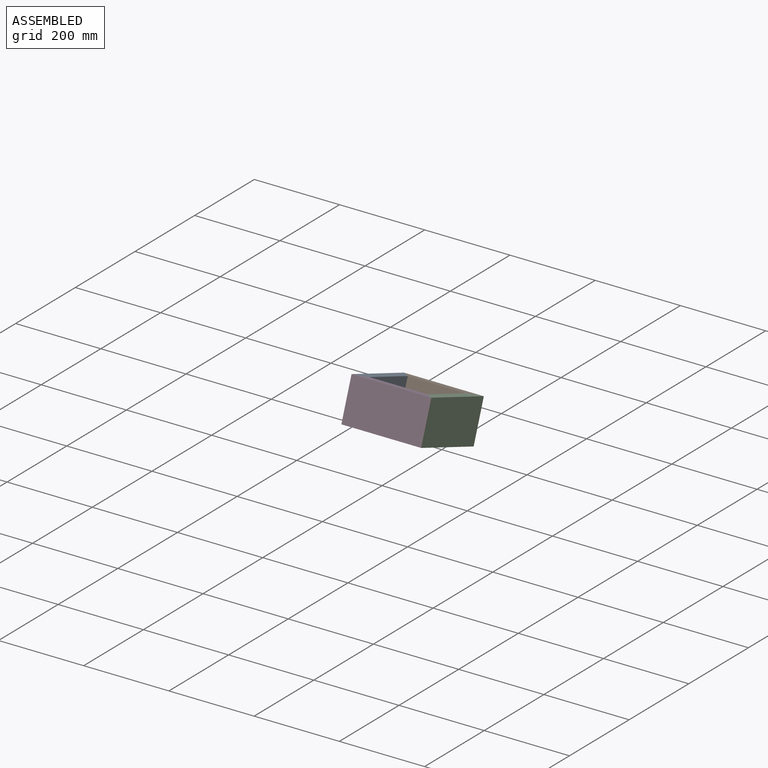
[diagram: assembled view]
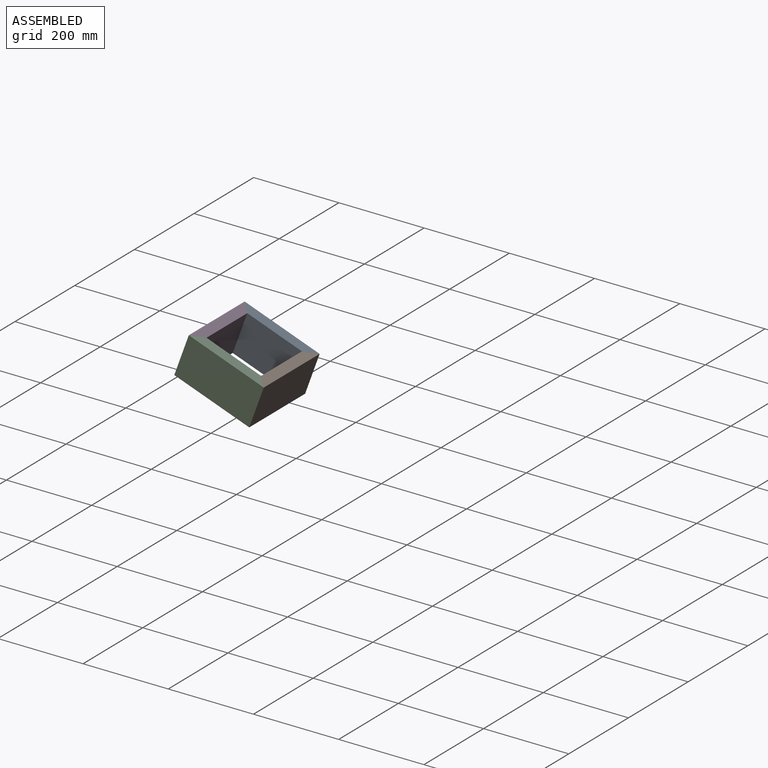
[diagram: assembled view, second angle]
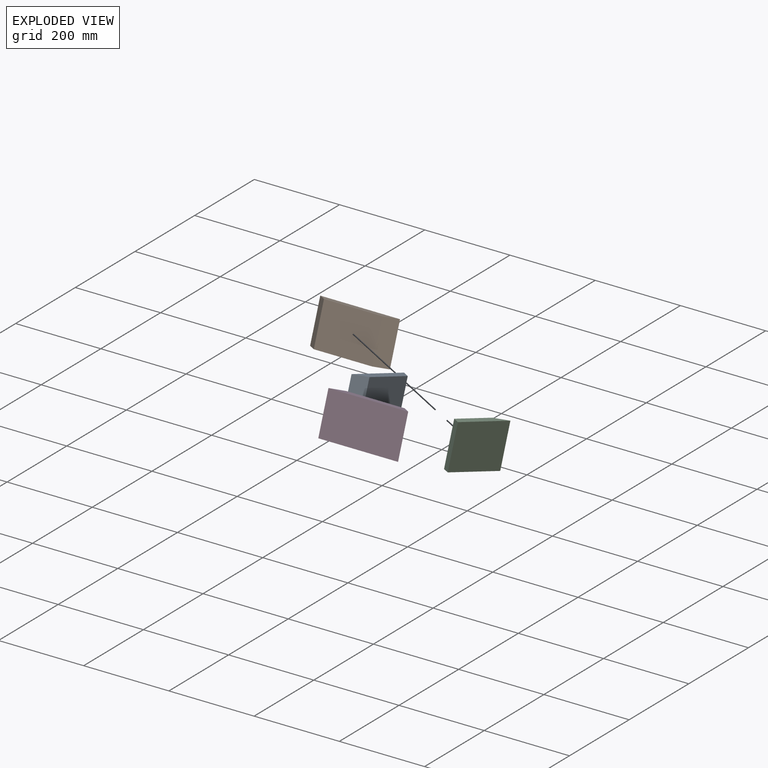
[diagram: exploded view]
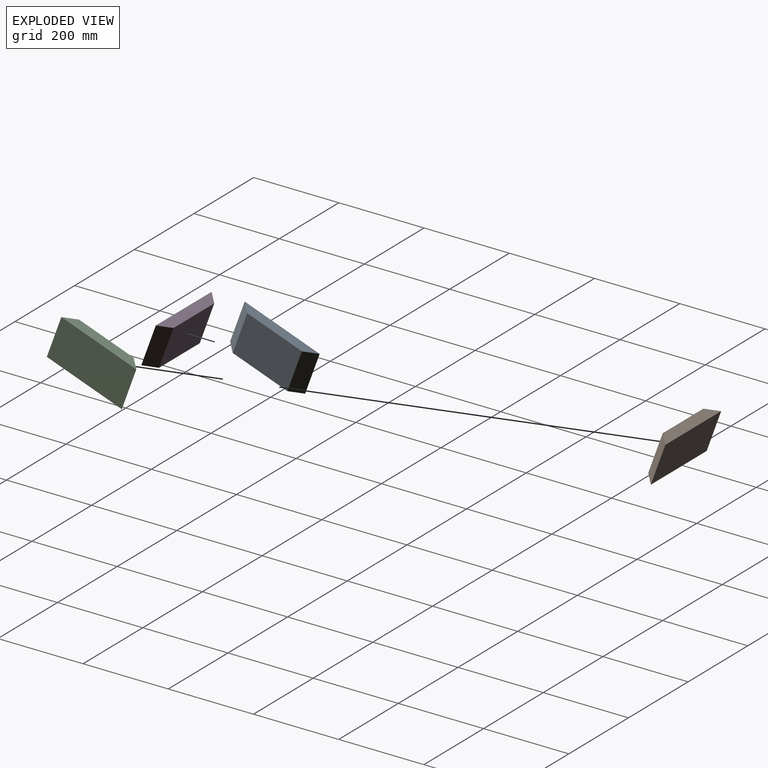
[diagram: exploded view, second angle]
ASSEMBLY  parts=4 mates=3
PART A: 6 faces, bbox 187.3x99.6x25.4 mm
  f0: plane 187.26x25.4mm, normal (0,1,0), area 4111.3mm2, adj f2,f3,f4,f5
  f1: plane 187.26x25.4mm, normal (0,-1,0), area 4111.3mm2, adj f2,f3,f4,f5
  f2: plane 187.26x99.56mm, normal (0,0,1), area 18642.8mm2, adj f0,f1,f4,f5
  f3: plane 136.46x99.56mm, normal (0,0,-1), area 13585.4mm2, adj f0,f1,f4,f5
  f4: plane 99.56x25.4mm, normal (0.71,0,-0.71), area 3576.1mm2, adj f0,f1,f2,f3
  f5: plane 99.56x25.4mm, normal (-0.71,0,-0.71), area 3576.1mm2, adj f0,f1,f2,f3
PART B: same geometry as A
PART C: same geometry as A
PART D: same geometry as A
PLACE A rot(axis=(-0.63,-0.44,0.63),132.1deg) t=(-71.86,22.05,-89.88)mm
PLACE B rot(axis=(0,-0.82,-0.57),180deg) t=(-3.63,86.16,-113.21)mm
PLACE C rot(axis=(-0.63,0.44,-0.63),132.1deg) t=(64.6,22.05,-89.88)mm
PLACE D rot(axis=(1,0,0),70deg) t=(-3.63,-42.07,-66.54)mm
MATE planar C.f4 <-> D.f4  axis (-0.71,-0.66,0.24) through (77.3,-54,-62.2)mm
MATE planar A.f5 <-> D.f5  axis (0.71,-0.66,0.24) through (-84.56,-54,-62.2)mm
MATE planar B.f5 <-> C.f5  axis (0.71,-0.66,0.24) through (77.3,98.1,-117.56)mm
